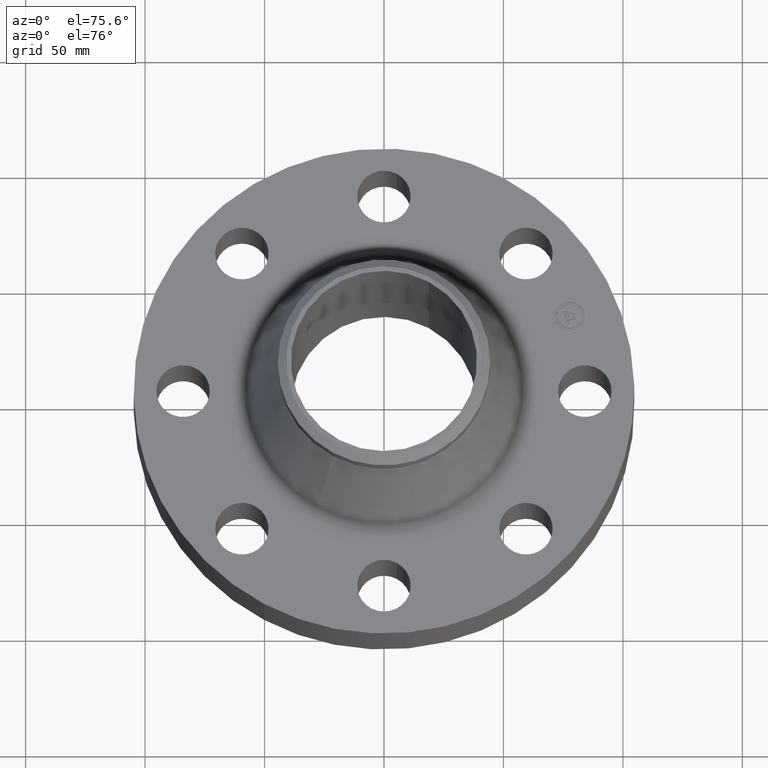
[diagram: clean part render]
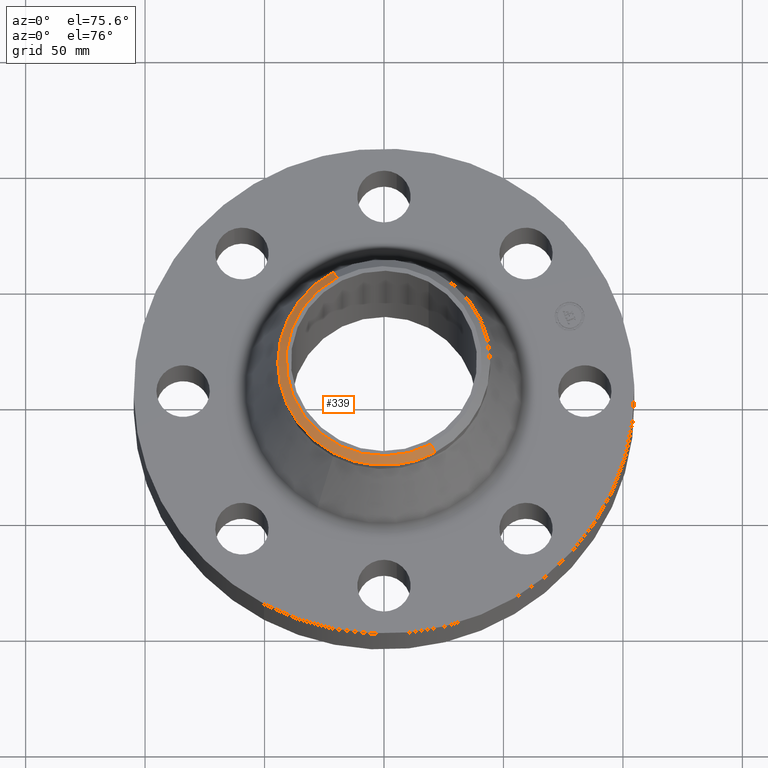
[diagram: same view with one face highlighted and labeled with its STEP entity id]
A machine part, auxiliary view. The second image highlights one B-rep face of the part: STEP entity #339.
In plain terms, the highlighted conical surface has half-angle 52.5 deg.
Its self-contained STEP definition (entity closure, byte-faithful):
#277=AXIS2_PLACEMENT_3D('Circle Axis2P3D',#275,#276,$) ;
#290=AXIS2_PLACEMENT_3D('Circle Axis2P3D',#288,#289,$) ;
#311=AXIS2_PLACEMENT_3D('Cone Axis2P3D',#308,#309,#310) ;
#322=AXIS2_PLACEMENT_3D('Circle Axis2P3D',#320,#321,$) ;
#258=CARTESIAN_POINT('Vertex',(-0.838994692561,-1.53576948331,2.95467681848)) ;
#272=CARTESIAN_POINT('Vertex',(0.838994692561,-1.53576948331,2.95467681848)) ;
#275=CARTESIAN_POINT('Axis2P3D Location',(0.,0.,2.95467681848)) ;
#288=CARTESIAN_POINT('Axis2P3D Location',(0.,0.,2.95467681848)) ;
#292=CARTESIAN_POINT('Vertex',(-0.838994692561,1.53576948331,2.95467681848)) ;
#308=CARTESIAN_POINT('Axis2P3D Location',(0.,0.,3.06000000001)) ;
#313=CARTESIAN_POINT('Line Origine',(0.806091755596,-1.47554106119,3.00733840925)) ;
#317=CARTESIAN_POINT('Vertex',(0.773188818632,-1.41531263907,3.06000000001)) ;
#320=CARTESIAN_POINT('Axis2P3D Location',(0.,0.,3.06000000001)) ;
#324=CARTESIAN_POINT('Vertex',(-0.773188818632,1.41531263907,3.06000000001)) ;
#327=CARTESIAN_POINT('Line Origine',(-0.806091755596,1.47554106119,3.00733840925)) ;
#276=DIRECTION('Axis2P3D Direction',(0.,0.,-0.0393700787402)) ;
#289=DIRECTION('Axis2P3D Direction',(0.,0.,-0.0393700787402)) ;
#309=DIRECTION('Axis2P3D Direction',(-0.,-0.,-0.0393700787402)) ;
#310=DIRECTION('Axis2P3D XDirection',(-0.0188750212049,0.0345504945626,0.)) ;
#314=DIRECTION('Vector Direction',(0.014974561121,-0.02741075027,-0.023966985394)) ;
#321=DIRECTION('Axis2P3D Direction',(0.,0.,-0.0393700787402)) ;
#328=DIRECTION('Vector Direction',(-0.014974561121,0.02741075027,-0.023966985394)) ;
#315=VECTOR('Line Direction',#314,0.0393700787402) ;
#329=VECTOR('Line Direction',#328,0.0393700787402) ;
#333=ORIENTED_EDGE('',*,*,#319,.F.) ;
#334=ORIENTED_EDGE('',*,*,#326,.F.) ;
#335=ORIENTED_EDGE('',*,*,#331,.T.) ;
#336=ORIENTED_EDGE('',*,*,#294,.T.) ;
#337=ORIENTED_EDGE('',*,*,#279,.F.) ;
#339=ADVANCED_FACE('PartBody',(#338),#312,.T.) ;
#278=CIRCLE('generated circle',#277,1.75000000001) ;
#291=CIRCLE('generated circle',#290,1.75000000001) ;
#323=CIRCLE('generated circle',#322,1.61274015749) ;
#312=CONICAL_SURFACE('Cone',#311,1.61274015749,0.916297857297) ;
#279=EDGE_CURVE('',#273,#259,#278,.T.) ;
#294=EDGE_CURVE('',#293,#259,#291,.F.) ;
#319=EDGE_CURVE('',#318,#273,#316,.T.) ;
#326=EDGE_CURVE('',#325,#318,#323,.F.) ;
#331=EDGE_CURVE('',#325,#293,#330,.T.) ;
#332=EDGE_LOOP('',(#333,#334,#335,#336,#337)) ;
#338=FACE_OUTER_BOUND('',#332,.T.) ;
#316=LINE('Line',#313,#315) ;
#330=LINE('Line',#327,#329) ;
#259=VERTEX_POINT('',#258) ;
#273=VERTEX_POINT('',#272) ;
#293=VERTEX_POINT('',#292) ;
#318=VERTEX_POINT('',#317) ;
#325=VERTEX_POINT('',#324) ;